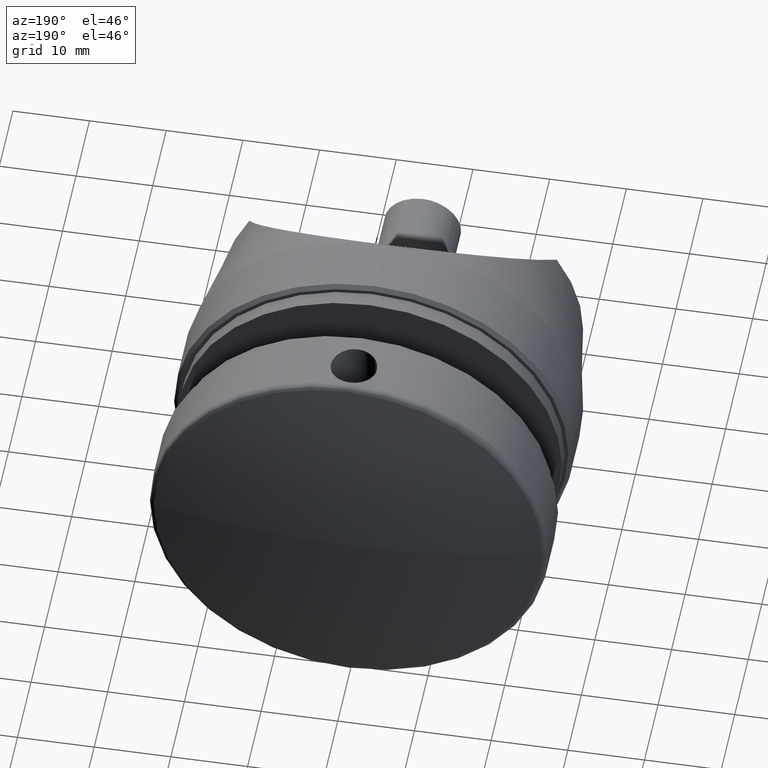
[diagram: clean part render]
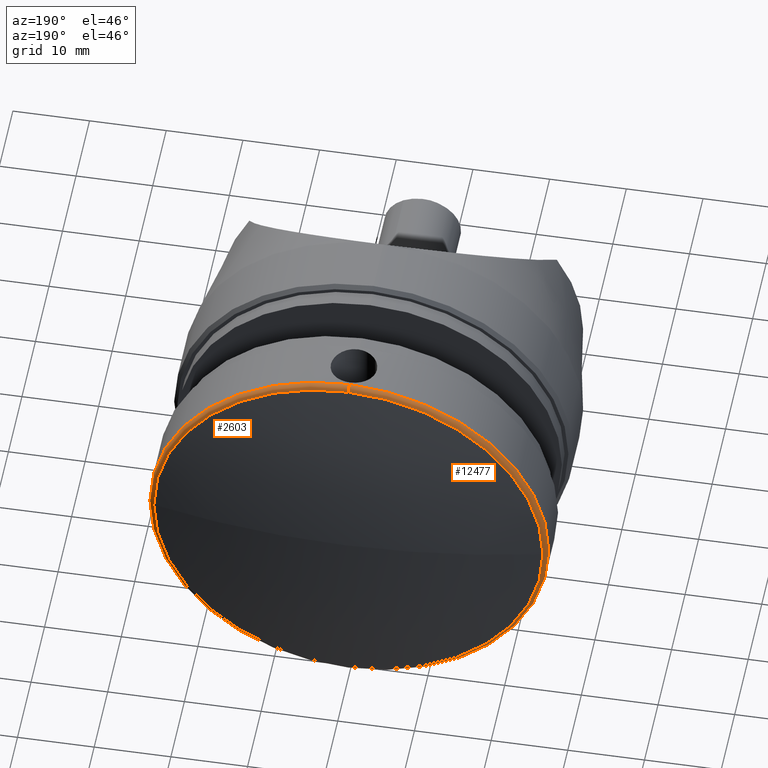
[diagram: same view with one multi-face feature highlighted, each face labeled with its STEP entity id]
A machine part, auxiliary view. The highlighted faces form ONE feature: a constant-radius fillet chain: 2 tangent blend faces with common blend radius 0.8 mm. The faces share edges in the B-rep.
Their STEP definitions:
[1] entity #2603 (Torus):
#267 = DIRECTION ( 'NONE',  ( 0.000000000000000000, 0.000000000000000000, 1.000000000000000000 ) ) ;
#295 = CARTESIAN_POINT ( 'NONE',  ( 0.000000000000000000, 16.14368109908169302, 0.000000000000000000 ) ) ;
#343 = CARTESIAN_POINT ( 'NONE',  ( 0.000000000000000000, 16.14368109908169302, 0.000000000000000000 ) ) ;
#553 = AXIS2_PLACEMENT_3D ( 'NONE', #3802, #6339, #5149 ) ;
#596 = CIRCLE ( 'NONE', #10623, 0.7999999999999951594 ) ;
#1454 = CARTESIAN_POINT ( 'NONE',  ( 0.000000000000000000, 15.36369618043119800, -25.99999999999999645 ) ) ;
#1612 = EDGE_CURVE ( 'NONE', #9338, #8320, #14671, .T. ) ;
#1785 = DIRECTION ( 'NONE',  ( -1.224646799147353947E-16, 0.000000000000000000, -1.000000000000000000 ) ) ;
#2603 = ADVANCED_FACE ( 'NONE', ( #8323 ), #8339, .T. ) ;
#2675 = CARTESIAN_POINT ( 'NONE',  ( 0.000000000000000000, 15.36369618043119800, 0.000000000000000000 ) ) ;
#2679 = EDGE_CURVE ( 'NONE', #3101, #6957, #11960, .T. ) ;
#3101 = VERTEX_POINT ( 'NONE', #1454 ) ;
#3118 = CARTESIAN_POINT ( 'NONE',  ( 3.184081677783118191E-15, 15.36369618043119800, 25.99999999999999645 ) ) ;
#3802 = CARTESIAN_POINT ( 'NONE',  ( 0.000000000000000000, 15.36369618043119800, 0.000000000000000000 ) ) ;
#4072 = DIRECTION ( 'NONE',  ( 0.000000000000000000, 0.000000000000000000, -1.000000000000000000 ) ) ;
#4985 = DIRECTION ( 'NONE',  ( -0.000000000000000000, -1.000000000000000000, -0.000000000000000000 ) ) ;
#5056 = ORIENTED_EDGE ( 'NONE', *, *, #12563, .T. ) ;
#5103 = AXIS2_PLACEMENT_3D ( 'NONE', #295, #6413, #9996 ) ;
#5149 = DIRECTION ( 'NONE',  ( 0.000000000000000000, 0.000000000000000000, -1.000000000000000000 ) ) ;
#5691 = AXIS2_PLACEMENT_3D ( 'NONE', #2675, #4985, #6401 ) ;
#6339 = DIRECTION ( 'NONE',  ( -0.000000000000000000, -1.000000000000000000, -0.000000000000000000 ) ) ;
#6401 = DIRECTION ( 'NONE',  ( 0.000000000000000000, 0.000000000000000000, -1.000000000000000000 ) ) ;
#6413 = DIRECTION ( 'NONE',  ( -0.000000000000000000, -1.000000000000000000, -0.000000000000000000 ) ) ;
#6478 = CARTESIAN_POINT ( 'NONE',  ( 0.000000000000000000, 15.36369618043119800, -25.19999999999999929 ) ) ;
#6957 = VERTEX_POINT ( 'NONE', #3118 ) ;
#7557 = CARTESIAN_POINT ( 'NONE',  ( 25.37783004998529535, 16.14368109908169302, 0.000000000000000000 ) ) ;
#7738 = DIRECTION ( 'NONE',  ( -0.000000000000000000, -1.000000000000000000, -0.000000000000000000 ) ) ;
#7794 = ORIENTED_EDGE ( 'NONE', *, *, #1612, .T. ) ;
#7948 = EDGE_LOOP ( 'NONE', ( #14714, #5056, #10628, #10810, #7794 ) ) ;
#8320 = VERTEX_POINT ( 'NONE', #7557 ) ;
#8323 = FACE_OUTER_BOUND ( 'NONE', #7948, .T. ) ;
#8339 = TOROIDAL_SURFACE ( 'NONE', #5691, 25.19999999999999929, 0.7999999999999949374 ) ;
#9227 = VERTEX_POINT ( 'NONE', #10758 ) ;
#9338 = VERTEX_POINT ( 'NONE', #12118 ) ;
#9996 = DIRECTION ( 'NONE',  ( 0.000000000000000000, 0.000000000000000000, -1.000000000000000000 ) ) ;
#10623 = AXIS2_PLACEMENT_3D ( 'NONE', #6478, #15001, #267 ) ;
#10628 = ORIENTED_EDGE ( 'NONE', *, *, #2679, .F. ) ;
#10758 = CARTESIAN_POINT ( 'NONE',  ( 3.145984755892558472E-15, 16.14368109908169302, 25.37783004998528824 ) ) ;
#10810 = ORIENTED_EDGE ( 'NONE', *, *, #13410, .F. ) ;
#11733 = CIRCLE ( 'NONE', #5103, 25.37783004998528824 ) ;
#11960 = CIRCLE ( 'NONE', #553, 25.99999999999999645 ) ;
#12118 = CARTESIAN_POINT ( 'NONE',  ( 0.000000000000000000, 16.14368109908169302, -25.37783004998528824 ) ) ;
#12514 = CIRCLE ( 'NONE', #13500, 0.7999999999999951594 ) ;
#12563 = EDGE_CURVE ( 'NONE', #9227, #6957, #12514, .T. ) ;
#13081 = AXIS2_PLACEMENT_3D ( 'NONE', #343, #7738, #4072 ) ;
#13410 = EDGE_CURVE ( 'NONE', #9338, #3101, #596, .T. ) ;
#13500 = AXIS2_PLACEMENT_3D ( 'NONE', #13984, #13787, #1785 ) ;
#13787 = DIRECTION ( 'NONE',  ( 1.000000000000000000, 0.000000000000000000, -1.224646799147353207E-16 ) ) ;
#13984 = CARTESIAN_POINT ( 'NONE',  ( 3.086109933851330151E-15, 15.36369618043119800, 25.19999999999999929 ) ) ;
#14136 = EDGE_CURVE ( 'NONE', #8320, #9227, #11733, .T. ) ;
#14671 = CIRCLE ( 'NONE', #13081, 25.37783004998528824 ) ;
#14714 = ORIENTED_EDGE ( 'NONE', *, *, #14136, .T. ) ;
#15001 = DIRECTION ( 'NONE',  ( -1.000000000000000000, 0.000000000000000000, 0.000000000000000000 ) ) ;
[2] entity #12477 (Torus):
#238 = TOROIDAL_SURFACE ( 'NONE', #2200, 25.19999999999999929, 0.7999999999999949374 ) ;
#267 = DIRECTION ( 'NONE',  ( 0.000000000000000000, 0.000000000000000000, 1.000000000000000000 ) ) ;
#439 = EDGE_CURVE ( 'NONE', #6957, #3101, #7955, .T. ) ;
#500 = DIRECTION ( 'NONE',  ( 0.000000000000000000, 0.000000000000000000, -1.000000000000000000 ) ) ;
#551 = DIRECTION ( 'NONE',  ( -0.000000000000000000, -1.000000000000000000, -0.000000000000000000 ) ) ;
#596 = CIRCLE ( 'NONE', #10623, 0.7999999999999951594 ) ;
#1454 = CARTESIAN_POINT ( 'NONE',  ( 0.000000000000000000, 15.36369618043119800, -25.99999999999999645 ) ) ;
#1552 = ORIENTED_EDGE ( 'NONE', *, *, #15616, .T. ) ;
#1785 = DIRECTION ( 'NONE',  ( -1.224646799147353947E-16, 0.000000000000000000, -1.000000000000000000 ) ) ;
#2200 = AXIS2_PLACEMENT_3D ( 'NONE', #11423, #551, #10191 ) ;
#2300 = CIRCLE ( 'NONE', #3124, 25.37783004998528824 ) ;
#3101 = VERTEX_POINT ( 'NONE', #1454 ) ;
#3118 = CARTESIAN_POINT ( 'NONE',  ( 3.184081677783118191E-15, 15.36369618043119800, 25.99999999999999645 ) ) ;
#3124 = AXIS2_PLACEMENT_3D ( 'NONE', #10280, #7830, #500 ) ;
#4264 = CIRCLE ( 'NONE', #13647, 25.37783004998528824 ) ;
#5387 = FACE_OUTER_BOUND ( 'NONE', #13012, .T. ) ;
#5861 = DIRECTION ( 'NONE',  ( -0.000000000000000000, -1.000000000000000000, -0.000000000000000000 ) ) ;
#6478 = CARTESIAN_POINT ( 'NONE',  ( 0.000000000000000000, 15.36369618043119800, -25.19999999999999929 ) ) ;
#6915 = AXIS2_PLACEMENT_3D ( 'NONE', #10687, #5861, #9690 ) ;
#6957 = VERTEX_POINT ( 'NONE', #3118 ) ;
#7397 = CARTESIAN_POINT ( 'NONE',  ( 0.000000000000000000, 16.14368109908169302, 0.000000000000000000 ) ) ;
#7830 = DIRECTION ( 'NONE',  ( -0.000000000000000000, -1.000000000000000000, -0.000000000000000000 ) ) ;
#7955 = CIRCLE ( 'NONE', #6915, 25.99999999999999645 ) ;
#9227 = VERTEX_POINT ( 'NONE', #10758 ) ;
#9338 = VERTEX_POINT ( 'NONE', #12118 ) ;
#9690 = DIRECTION ( 'NONE',  ( 0.000000000000000000, 0.000000000000000000, -1.000000000000000000 ) ) ;
#9747 = DIRECTION ( 'NONE',  ( 0.000000000000000000, 0.000000000000000000, -1.000000000000000000 ) ) ;
#9888 = ORIENTED_EDGE ( 'NONE', *, *, #12563, .F. ) ;
#10191 = DIRECTION ( 'NONE',  ( 0.000000000000000000, 0.000000000000000000, -1.000000000000000000 ) ) ;
#10280 = CARTESIAN_POINT ( 'NONE',  ( 0.000000000000000000, 16.14368109908169302, 0.000000000000000000 ) ) ;
#10592 = CARTESIAN_POINT ( 'NONE',  ( -25.37783004998529535, 16.14368109908169302, 3.107887834002000330E-15 ) ) ;
#10623 = AXIS2_PLACEMENT_3D ( 'NONE', #6478, #15001, #267 ) ;
#10687 = CARTESIAN_POINT ( 'NONE',  ( 0.000000000000000000, 15.36369618043119800, 0.000000000000000000 ) ) ;
#10758 = CARTESIAN_POINT ( 'NONE',  ( 3.145984755892558472E-15, 16.14368109908169302, 25.37783004998528824 ) ) ;
#11027 = DIRECTION ( 'NONE',  ( -0.000000000000000000, -1.000000000000000000, -0.000000000000000000 ) ) ;
#11166 = EDGE_CURVE ( 'NONE', #13255, #9338, #4264, .T. ) ;
#11423 = CARTESIAN_POINT ( 'NONE',  ( 0.000000000000000000, 15.36369618043119800, 0.000000000000000000 ) ) ;
#12118 = CARTESIAN_POINT ( 'NONE',  ( 0.000000000000000000, 16.14368109908169302, -25.37783004998528824 ) ) ;
#12161 = ORIENTED_EDGE ( 'NONE', *, *, #11166, .T. ) ;
#12477 = ADVANCED_FACE ( 'NONE', ( #5387 ), #238, .T. ) ;
#12514 = CIRCLE ( 'NONE', #13500, 0.7999999999999951594 ) ;
#12563 = EDGE_CURVE ( 'NONE', #9227, #6957, #12514, .T. ) ;
#13012 = EDGE_LOOP ( 'NONE', ( #9888, #1552, #12161, #13329, #13239 ) ) ;
#13239 = ORIENTED_EDGE ( 'NONE', *, *, #439, .F. ) ;
#13255 = VERTEX_POINT ( 'NONE', #10592 ) ;
#13329 = ORIENTED_EDGE ( 'NONE', *, *, #13410, .T. ) ;
#13410 = EDGE_CURVE ( 'NONE', #9338, #3101, #596, .T. ) ;
#13500 = AXIS2_PLACEMENT_3D ( 'NONE', #13984, #13787, #1785 ) ;
#13647 = AXIS2_PLACEMENT_3D ( 'NONE', #7397, #11027, #9747 ) ;
#13787 = DIRECTION ( 'NONE',  ( 1.000000000000000000, 0.000000000000000000, -1.224646799147353207E-16 ) ) ;
#13984 = CARTESIAN_POINT ( 'NONE',  ( 3.086109933851330151E-15, 15.36369618043119800, 25.19999999999999929 ) ) ;
#15001 = DIRECTION ( 'NONE',  ( -1.000000000000000000, 0.000000000000000000, 0.000000000000000000 ) ) ;
#15616 = EDGE_CURVE ( 'NONE', #9227, #13255, #2300, .T. ) ;